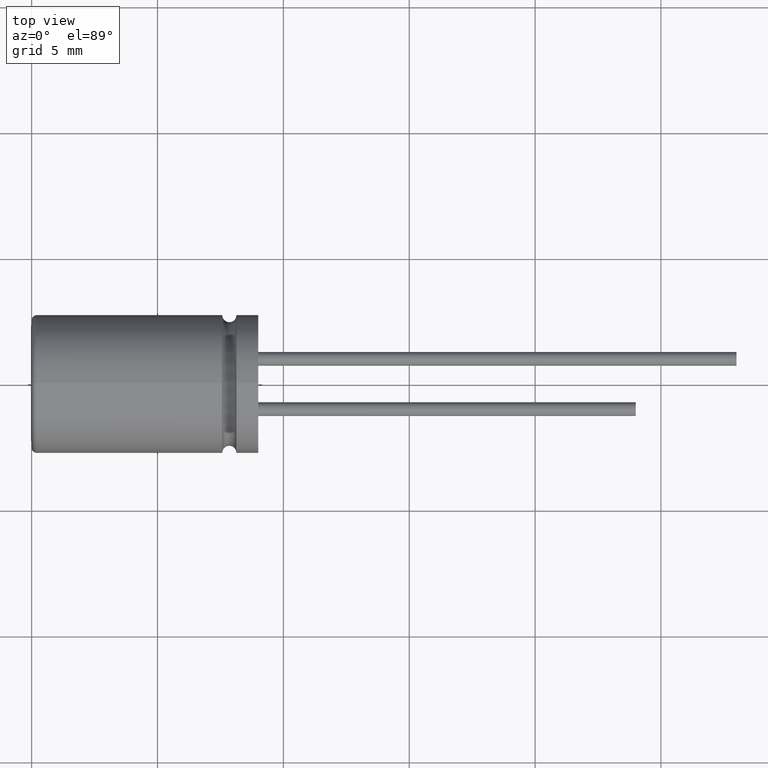
[diagram: clean part render]
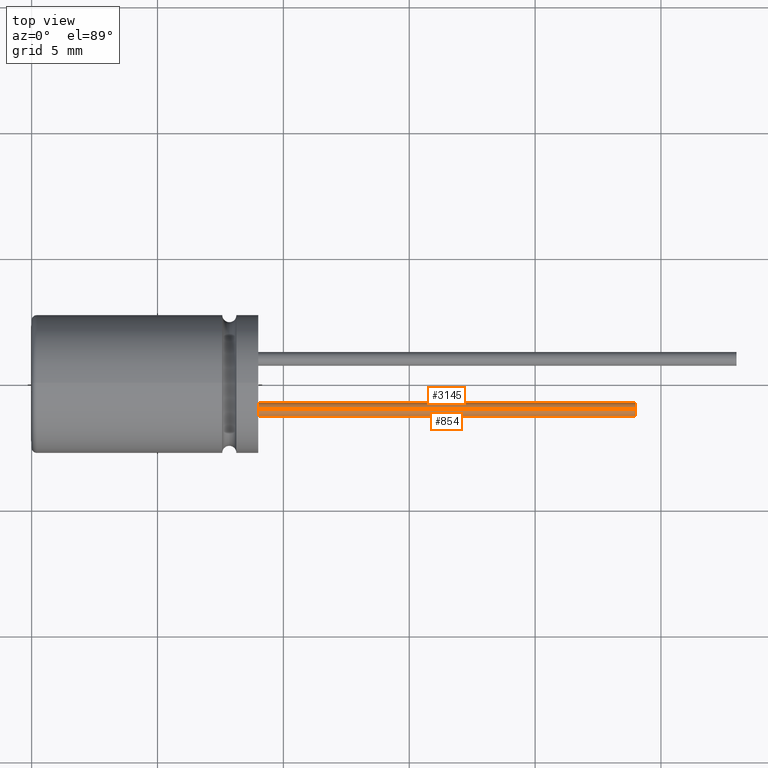
[diagram: same view with one multi-face feature highlighted, each face labeled with its STEP entity id]
A machine part, top view. The highlighted faces form ONE feature: a constant-radius fillet chain: 2 tangent blend faces with common blend radius 0.275 mm. The faces share edges in the B-rep.
Their STEP definitions:
[1] entity #854 (Cylinder):
#216 = CARTESIAN_POINT ( 'NONE',  ( 9.000000000000000000, -1.000000000000000000, 0.2750000000000000200 ) ) ;
#324 = CARTESIAN_POINT ( 'NONE',  ( 24.00000000000000000, -1.000000000000000000, 0.2750000000000000200 ) ) ;
#329 = CARTESIAN_POINT ( 'NONE',  ( 24.00000000000000000, -1.000000000000000000, -0.2750000000000000200 ) ) ;
#366 = AXIS2_PLACEMENT_3D ( 'NONE', #1834, #1044, #2384 ) ;
#607 = CIRCLE ( 'NONE', #366, 0.2750000000000000200 ) ;
#678 = DIRECTION ( 'NONE',  ( 1.000000000000000000, 0.0000000000000000000, 0.0000000000000000000 ) ) ;
#679 = CARTESIAN_POINT ( 'NONE',  ( 24.00000000000000000, -1.000000000000000000, -0.2750000000000000200 ) ) ;
#831 = DIRECTION ( 'NONE',  ( -1.000000000000000000, -0.0000000000000000000, -0.0000000000000000000 ) ) ;
#854 = ADVANCED_FACE ( 'NONE', ( #1146 ), #2275, .T. ) ;
#1044 = DIRECTION ( 'NONE',  ( 1.000000000000000000, 0.0000000000000000000, 0.0000000000000000000 ) ) ;
#1074 = ORIENTED_EDGE ( 'NONE', *, *, #2774, .T. ) ;
#1088 = VERTEX_POINT ( 'NONE', #679 ) ;
#1107 = VECTOR ( 'NONE', #1329, 1000.000000000000000 ) ;
#1146 = FACE_OUTER_BOUND ( 'NONE', #1497, .T. ) ;
#1329 = DIRECTION ( 'NONE',  ( -1.000000000000000000, -0.0000000000000000000, -0.0000000000000000000 ) ) ;
#1495 = CIRCLE ( 'NONE', #2885, 0.2750000000000000200 ) ;
#1497 = EDGE_LOOP ( 'NONE', ( #1745, #2690, #2032, #1074 ) ) ;
#1568 = CARTESIAN_POINT ( 'NONE',  ( 9.000000000000000000, -1.000000000000000000, -0.2750000000000000200 ) ) ;
#1745 = ORIENTED_EDGE ( 'NONE', *, *, #2510, .F. ) ;
#1834 = CARTESIAN_POINT ( 'NONE',  ( 9.000000000000000000, -1.000000000000000000, 0.0000000000000000000 ) ) ;
#2032 = ORIENTED_EDGE ( 'NONE', *, *, #2910, .T. ) ;
#2275 = CYLINDRICAL_SURFACE ( 'NONE', #2294, 0.2750000000000000200 ) ;
#2285 = CARTESIAN_POINT ( 'NONE',  ( 24.00000000000000000, -1.000000000000000000, 0.0000000000000000000 ) ) ;
#2294 = AXIS2_PLACEMENT_3D ( 'NONE', #2440, #831, #3178 ) ;
#2311 = EDGE_CURVE ( 'NONE', #2920, #1088, #1495, .T. ) ;
#2384 = DIRECTION ( 'NONE',  ( 0.0000000000000000000, 0.0000000000000000000, -1.000000000000000000 ) ) ;
#2393 = DIRECTION ( 'NONE',  ( -1.000000000000000000, -0.0000000000000000000, -0.0000000000000000000 ) ) ;
#2417 = CARTESIAN_POINT ( 'NONE',  ( 24.00000000000000000, -1.000000000000000000, 0.2750000000000000200 ) ) ;
#2440 = CARTESIAN_POINT ( 'NONE',  ( 24.00000000000000000, -1.000000000000000000, 0.0000000000000000000 ) ) ;
#2510 = EDGE_CURVE ( 'NONE', #1088, #2844, #2785, .T. ) ;
#2557 = DIRECTION ( 'NONE',  ( 0.0000000000000000000, 0.0000000000000000000, -1.000000000000000000 ) ) ;
#2690 = ORIENTED_EDGE ( 'NONE', *, *, #2311, .F. ) ;
#2774 = EDGE_CURVE ( 'NONE', #3309, #2844, #607, .T. ) ;
#2785 = LINE ( 'NONE', #329, #3037 ) ;
#2844 = VERTEX_POINT ( 'NONE', #1568 ) ;
#2864 = LINE ( 'NONE', #324, #1107 ) ;
#2885 = AXIS2_PLACEMENT_3D ( 'NONE', #2285, #678, #2557 ) ;
#2910 = EDGE_CURVE ( 'NONE', #2920, #3309, #2864, .T. ) ;
#2920 = VERTEX_POINT ( 'NONE', #2417 ) ;
#3037 = VECTOR ( 'NONE', #2393, 1000.000000000000000 ) ;
#3178 = DIRECTION ( 'NONE',  ( 0.0000000000000000000, 0.0000000000000000000, 1.000000000000000000 ) ) ;
#3309 = VERTEX_POINT ( 'NONE', #216 ) ;
[2] entity #3145 (Cylinder):
#122 = AXIS2_PLACEMENT_3D ( 'NONE', #1588, #1345, #3208 ) ;
#216 = CARTESIAN_POINT ( 'NONE',  ( 9.000000000000000000, -1.000000000000000000, 0.2750000000000000200 ) ) ;
#231 = ORIENTED_EDGE ( 'NONE', *, *, #1071, .F. ) ;
#324 = CARTESIAN_POINT ( 'NONE',  ( 24.00000000000000000, -1.000000000000000000, 0.2750000000000000200 ) ) ;
#329 = CARTESIAN_POINT ( 'NONE',  ( 24.00000000000000000, -1.000000000000000000, -0.2750000000000000200 ) ) ;
#559 = CIRCLE ( 'NONE', #2157, 0.2750000000000000200 ) ;
#625 = CIRCLE ( 'NONE', #122, 0.2750000000000000200 ) ;
#679 = CARTESIAN_POINT ( 'NONE',  ( 24.00000000000000000, -1.000000000000000000, -0.2750000000000000200 ) ) ;
#839 = CARTESIAN_POINT ( 'NONE',  ( 24.00000000000000000, -1.000000000000000000, 0.0000000000000000000 ) ) ;
#921 = AXIS2_PLACEMENT_3D ( 'NONE', #839, #2786, #1442 ) ;
#1071 = EDGE_CURVE ( 'NONE', #1088, #2920, #559, .T. ) ;
#1088 = VERTEX_POINT ( 'NONE', #679 ) ;
#1107 = VECTOR ( 'NONE', #1329, 1000.000000000000000 ) ;
#1129 = CYLINDRICAL_SURFACE ( 'NONE', #921, 0.2750000000000000200 ) ;
#1179 = DIRECTION ( 'NONE',  ( 0.0000000000000000000, 0.0000000000000000000, -1.000000000000000000 ) ) ;
#1329 = DIRECTION ( 'NONE',  ( -1.000000000000000000, -0.0000000000000000000, -0.0000000000000000000 ) ) ;
#1339 = EDGE_LOOP ( 'NONE', ( #231, #1872, #2159, #2034 ) ) ;
#1345 = DIRECTION ( 'NONE',  ( 1.000000000000000000, 0.0000000000000000000, 0.0000000000000000000 ) ) ;
#1416 = FACE_OUTER_BOUND ( 'NONE', #1339, .T. ) ;
#1442 = DIRECTION ( 'NONE',  ( 0.0000000000000000000, 0.0000000000000000000, 1.000000000000000000 ) ) ;
#1568 = CARTESIAN_POINT ( 'NONE',  ( 9.000000000000000000, -1.000000000000000000, -0.2750000000000000200 ) ) ;
#1588 = CARTESIAN_POINT ( 'NONE',  ( 9.000000000000000000, -1.000000000000000000, 0.0000000000000000000 ) ) ;
#1763 = EDGE_CURVE ( 'NONE', #2844, #3309, #625, .T. ) ;
#1872 = ORIENTED_EDGE ( 'NONE', *, *, #2510, .T. ) ;
#2034 = ORIENTED_EDGE ( 'NONE', *, *, #2910, .F. ) ;
#2157 = AXIS2_PLACEMENT_3D ( 'NONE', #3075, #3320, #1179 ) ;
#2159 = ORIENTED_EDGE ( 'NONE', *, *, #1763, .T. ) ;
#2393 = DIRECTION ( 'NONE',  ( -1.000000000000000000, -0.0000000000000000000, -0.0000000000000000000 ) ) ;
#2417 = CARTESIAN_POINT ( 'NONE',  ( 24.00000000000000000, -1.000000000000000000, 0.2750000000000000200 ) ) ;
#2510 = EDGE_CURVE ( 'NONE', #1088, #2844, #2785, .T. ) ;
#2785 = LINE ( 'NONE', #329, #3037 ) ;
#2786 = DIRECTION ( 'NONE',  ( -1.000000000000000000, -0.0000000000000000000, -0.0000000000000000000 ) ) ;
#2844 = VERTEX_POINT ( 'NONE', #1568 ) ;
#2864 = LINE ( 'NONE', #324, #1107 ) ;
#2910 = EDGE_CURVE ( 'NONE', #2920, #3309, #2864, .T. ) ;
#2920 = VERTEX_POINT ( 'NONE', #2417 ) ;
#3037 = VECTOR ( 'NONE', #2393, 1000.000000000000000 ) ;
#3075 = CARTESIAN_POINT ( 'NONE',  ( 24.00000000000000000, -1.000000000000000000, 0.0000000000000000000 ) ) ;
#3145 = ADVANCED_FACE ( 'NONE', ( #1416 ), #1129, .T. ) ;
#3208 = DIRECTION ( 'NONE',  ( 0.0000000000000000000, 0.0000000000000000000, -1.000000000000000000 ) ) ;
#3309 = VERTEX_POINT ( 'NONE', #216 ) ;
#3320 = DIRECTION ( 'NONE',  ( 1.000000000000000000, 0.0000000000000000000, 0.0000000000000000000 ) ) ;